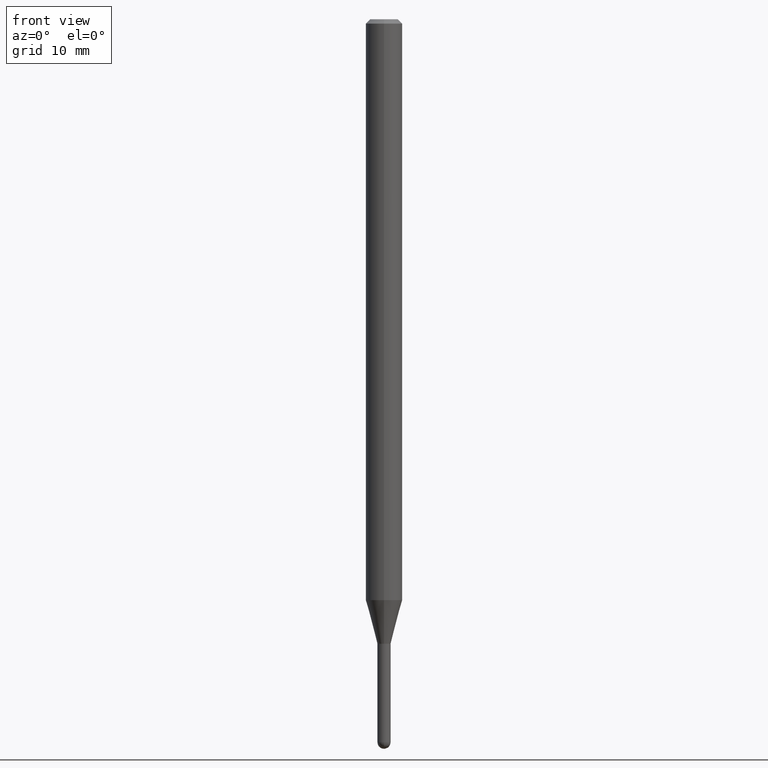
[diagram: clean part render]
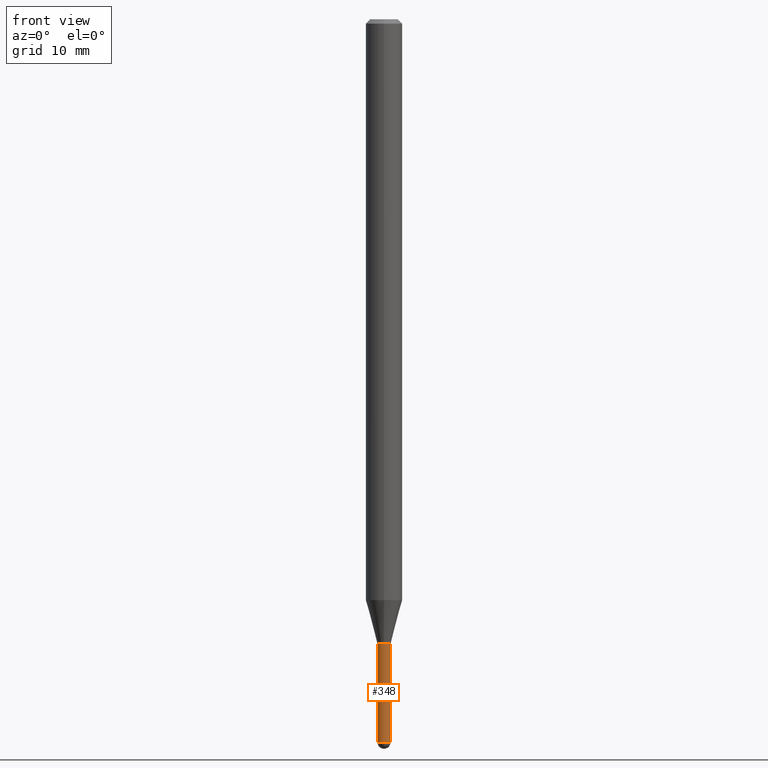
[diagram: same view with one face highlighted and labeled with its STEP entity id]
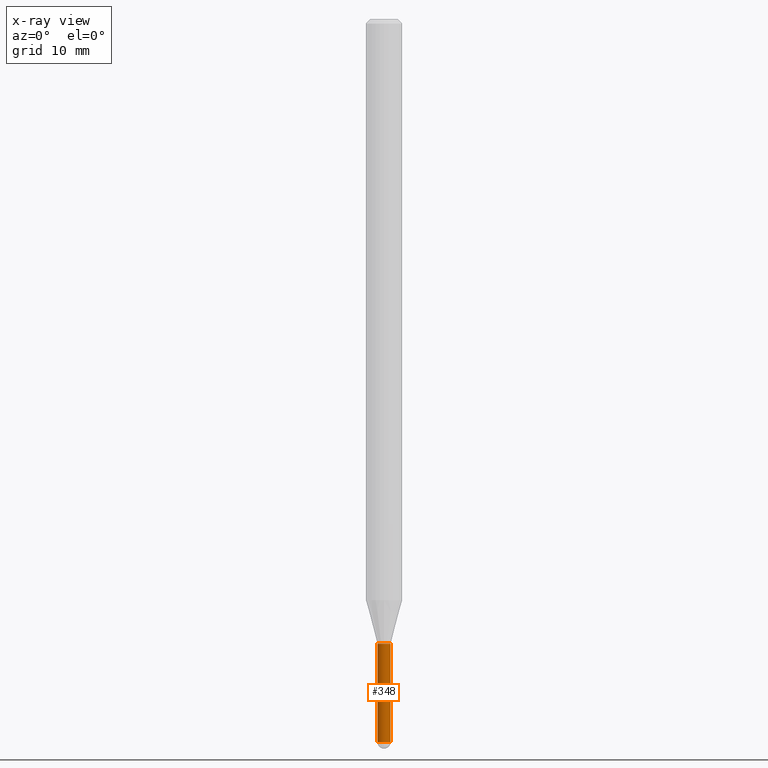
[diagram: x-ray of the same camera — body ghosted, the highlighted face saturated]
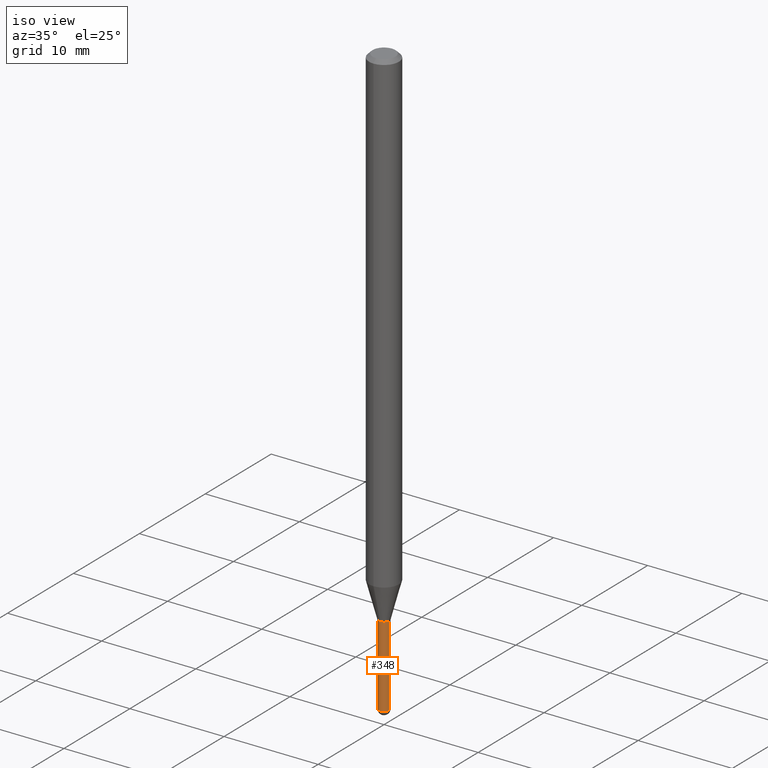
[diagram: same view with one face highlighted and labeled with its STEP entity id]
A machine part, front view. The second image highlights one B-rep face of the part: STEP entity #348.
The next image is the same camera in x-ray: the body ghosted, the highlighted face saturated — about 0% of this face is hidden behind the body in this view.
A second angle (iso view) of the same face is appended — the face is thin or edge-on in the first view.
In plain terms, the highlighted cylindrical surface (edge-blend (fillet) strip) has radius 0.5715 mm, axis along (-0, 0, 1).
Its self-contained STEP definition (entity closure, byte-faithful):
#9 = EDGE_CURVE ( 'NONE', #407, #60, #411, .T. ) ;
#27 = CARTESIAN_POINT ( 'NONE',  ( 6.058648967323676636E-29, -8.650145016983893338E-15, -2.477500000000000036 ) ) ;
#60 = VERTEX_POINT ( 'NONE', #215 ) ;
#81 = DIRECTION ( 'NONE',  ( -2.445468806185136877E-29, 3.491481338843145188E-15, 1.000000000000000000 ) ) ;
#103 = CARTESIAN_POINT ( 'NONE',  ( -0.02249999999999999570, -7.901085425508090322E-15, -2.477500000000000036 ) ) ;
#104 = CARTESIAN_POINT ( 'NONE',  ( 0.02249999999999999570, -8.218074201302054244E-15, -2.477500000000000036 ) ) ;
#111 = AXIS2_PLACEMENT_3D ( 'NONE', #463, #455, #146 ) ;
#116 = LINE ( 'NONE', #439, #321 ) ;
#136 = VERTEX_POINT ( 'NONE', #429 ) ;
#146 = DIRECTION ( 'NONE',  ( 1.000000000000000000, -6.982962677686269077E-15, 0.000000000000000000 ) ) ;
#164 = CIRCLE ( 'NONE', #278, 0.02249999999999999570 ) ;
#166 = VERTEX_POINT ( 'NONE', #104 ) ;
#171 = VERTEX_POINT ( 'NONE', #262 ) ;
#172 = DIRECTION ( 'NONE',  ( 1.000000000000000000, -6.982962677686269866E-15, 0.000000000000000000 ) ) ;
#215 = CARTESIAN_POINT ( 'NONE',  ( -0.02249999999999999917, -7.901085425508090322E-15, -2.140000000000000124 ) ) ;
#219 = ORIENTED_EDGE ( 'NONE', *, *, #502, .F. ) ;
#220 = DIRECTION ( 'NONE',  ( -2.445468806185136877E-29, 3.491481338843145188E-15, 1.000000000000000000 ) ) ;
#234 = CARTESIAN_POINT ( 'NONE',  ( 6.058648967323676636E-29, -8.650145016983893338E-15, -2.477500000000000036 ) ) ;
#235 = ORIENTED_EDGE ( 'NONE', *, *, #9, .F. ) ;
#243 = ORIENTED_EDGE ( 'NONE', *, *, #264, .T. ) ;
#259 = FACE_OUTER_BOUND ( 'NONE', #449, .T. ) ;
#262 = CARTESIAN_POINT ( 'NONE',  ( 0.02249999999999999917, -7.628886725372273518E-15, -2.140000000000000124 ) ) ;
#264 = EDGE_CURVE ( 'NONE', #407, #136, #436, .T. ) ;
#267 = VECTOR ( 'NONE', #220, 39.37007874015748143 ) ;
#278 = AXIS2_PLACEMENT_3D ( 'NONE', #234, #320, #396 ) ;
#290 = ORIENTED_EDGE ( 'NONE', *, *, #356, .T. ) ;
#293 = DIRECTION ( 'NONE',  ( -2.445468806185136597E-29, 3.491481338843145583E-15, 1.000000000000000000 ) ) ;
#302 = DIRECTION ( 'NONE',  ( -2.445468806185136597E-29, 3.491481338843145583E-15, 1.000000000000000000 ) ) ;
#320 = DIRECTION ( 'NONE',  ( -2.445468806185136597E-29, 3.491481338843145583E-15, 1.000000000000000000 ) ) ;
#321 = VECTOR ( 'NONE', #81, 39.37007874015748143 ) ;
#325 = CARTESIAN_POINT ( 'NONE',  ( -0.02249999999999999917, 1.598721155460225359E-16, -1.106760395307353780E-30 ) ) ;
#348 = ADVANCED_FACE ( 'NONE', ( #259 ), #422, .T. ) ;
#356 = EDGE_CURVE ( 'NONE', #166, #171, #116, .T. ) ;
#357 = EDGE_CURVE ( 'NONE', #136, #166, #164, .T. ) ;
#363 = CIRCLE ( 'NONE', #111, 0.02249999999999999917 ) ;
#384 = CARTESIAN_POINT ( 'NONE',  ( 0.000000000000000000, 0.000000000000000000, 0.000000000000000000 ) ) ;
#396 = DIRECTION ( 'NONE',  ( 1.000000000000000000, -6.982962677686269866E-15, 0.000000000000000000 ) ) ;
#407 = VERTEX_POINT ( 'NONE', #103 ) ;
#411 = LINE ( 'NONE', #325, #267 ) ;
#422 = CYLINDRICAL_SURFACE ( 'NONE', #440, 0.02249999999999999917 ) ;
#429 = CARTESIAN_POINT ( 'NONE',  ( -1.598721155459620894E-16, -0.02250000000000867278, -2.477500000000000036 ) ) ;
#436 = CIRCLE ( 'NONE', #447, 0.02249999999999999570 ) ;
#439 = CARTESIAN_POINT ( 'NONE',  ( 0.02249999999999999917, -1.571166602479409911E-16, 1.097139774554085483E-30 ) ) ;
#440 = AXIS2_PLACEMENT_3D ( 'NONE', #384, #302, #468 ) ;
#445 = ORIENTED_EDGE ( 'NONE', *, *, #357, .T. ) ;
#447 = AXIS2_PLACEMENT_3D ( 'NONE', #27, #293, #172 ) ;
#449 = EDGE_LOOP ( 'NONE', ( #235, #243, #445, #290, #219 ) ) ;
#455 = DIRECTION ( 'NONE',  ( -2.445468806185136597E-29, 3.491481338843145583E-15, 1.000000000000000000 ) ) ;
#463 = CARTESIAN_POINT ( 'NONE',  ( 5.233303245236192586E-29, -7.471770065124331886E-15, -2.140000000000000124 ) ) ;
#468 = DIRECTION ( 'NONE',  ( 1.000000000000000000, -6.982962677686266711E-15, 4.876176775795935793E-29 ) ) ;
#502 = EDGE_CURVE ( 'NONE', #60, #171, #363, .T. ) ;